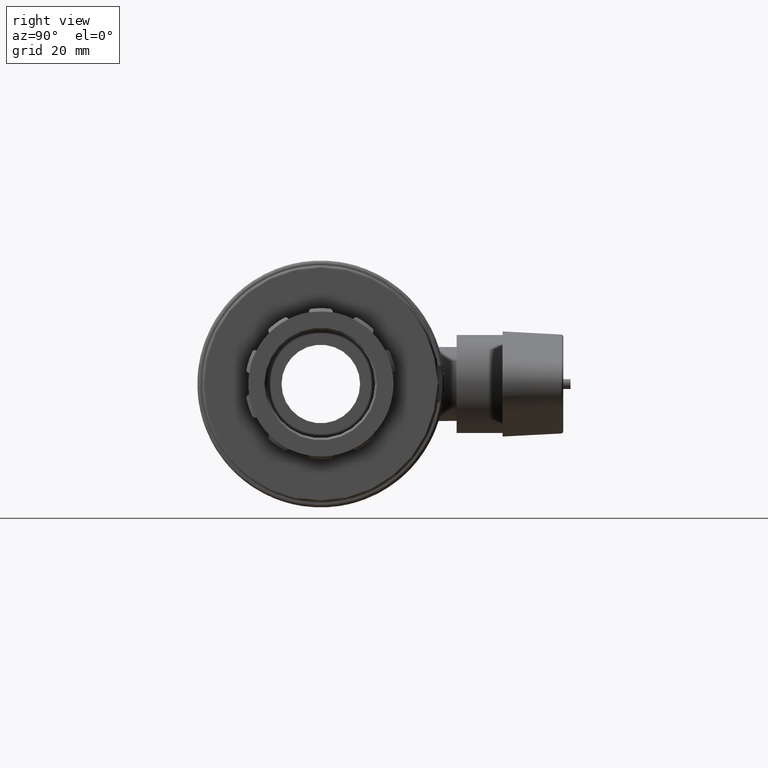
[diagram: clean part render]
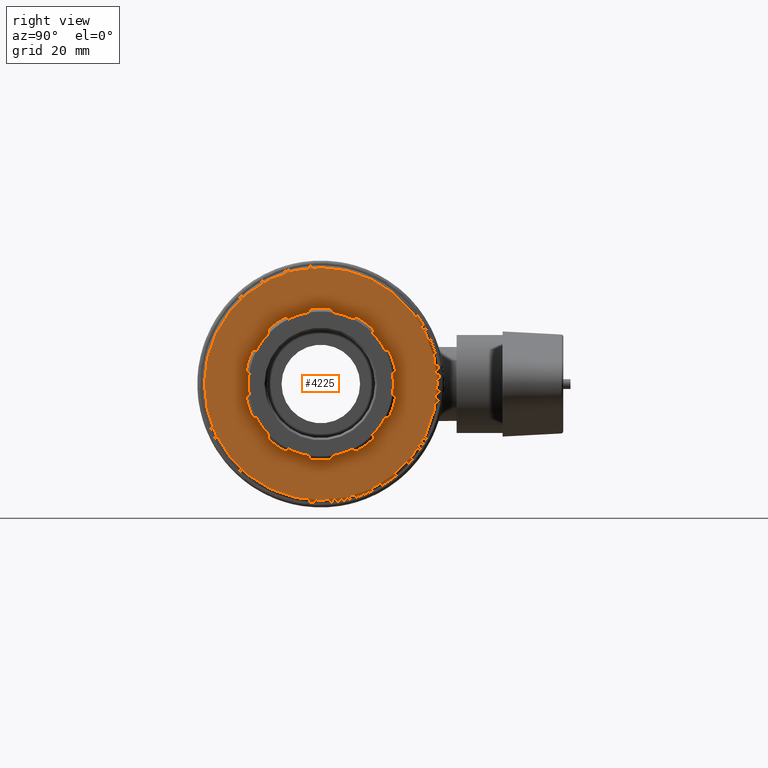
[diagram: same view with one face highlighted and labeled with its STEP entity id]
A machine part, right view. The second image highlights one B-rep face of the part: STEP entity #4225.
In plain terms, the highlighted planar face has unit normal (1, 0, 0).
Its self-contained STEP definition (entity closure, byte-faithful):
#92=FACE_BOUND('',#840,.T.);
#201=PLANE('',#4714);
#573=FACE_OUTER_BOUND('',#839,.T.);
#839=EDGE_LOOP('',(#3801));
#840=EDGE_LOOP('',(#3802,#3803,#3804,#3805,#3806,#3807,#3808,#3809,#3810,
#3811,#3812,#3813,#3814,#3815,#3816,#3817,#3818,#3819,#3820,#3821,#3822,
#3823,#3824,#3825,#3826,#3827,#3828,#3829,#3830,#3831,#3832,#3833,#3834,
#3835,#3836,#3837,#3838,#3839,#3840,#3841));
#1438=CIRCLE('',#4387,0.723510000000002);
#1441=CIRCLE('',#4392,0.723510000000001);
#1444=CIRCLE('',#4397,0.723509999999999);
#1445=CIRCLE('',#4399,0.723510000000001);
#1448=CIRCLE('',#4404,0.723509999999999);
#1449=CIRCLE('',#4406,0.723509999999999);
#1452=CIRCLE('',#4411,0.723510000000001);
#1453=CIRCLE('',#4413,0.723509999999999);
#1456=CIRCLE('',#4418,0.723509999999999);
#1457=CIRCLE('',#4420,0.723509999999999);
#1460=CIRCLE('',#4425,0.723510000000005);
#1461=CIRCLE('',#4427,0.723510000000001);
#1464=CIRCLE('',#4432,0.723509999999999);
#1465=CIRCLE('',#4434,0.723510000000001);
#1468=CIRCLE('',#4439,0.723509999999999);
#1469=CIRCLE('',#4441,0.723509999999999);
#1472=CIRCLE('',#4446,0.723510000000001);
#1473=CIRCLE('',#4448,0.723509999999999);
#1474=CIRCLE('',#4450,16.8819);
#1477=CIRCLE('',#4454,16.15839);
#1479=CIRCLE('',#4457,16.15839);
#1481=CIRCLE('',#4460,16.15839);
#1483=CIRCLE('',#4463,16.15839);
#1485=CIRCLE('',#4466,16.15839);
#1487=CIRCLE('',#4469,16.15839);
#1489=CIRCLE('',#4472,16.15839);
#1491=CIRCLE('',#4475,16.15839);
#1493=CIRCLE('',#4478,16.15839);
#1495=CIRCLE('',#4482,16.8819);
#1496=CIRCLE('',#4484,16.8819);
#1497=CIRCLE('',#4486,16.8819);
#1498=CIRCLE('',#4488,16.8819);
#1499=CIRCLE('',#4490,16.8819);
#1500=CIRCLE('',#4492,16.8819);
#1501=CIRCLE('',#4494,16.8819);
#1502=CIRCLE('',#4496,16.8819);
#1503=CIRCLE('',#4498,16.8819);
#1531=CIRCLE('',#4552,0.723509999999999);
#1532=CIRCLE('',#4554,0.723509999999999);
#1534=CIRCLE('',#4557,16.15839);
#1611=CIRCLE('',#4712,25.91766);
#1762=VERTEX_POINT('',#7062);
#1763=VERTEX_POINT('',#7064);
#1766=VERTEX_POINT('',#7085);
#1767=VERTEX_POINT('',#7086);
#1772=VERTEX_POINT('',#7122);
#1773=VERTEX_POINT('',#7124);
#1774=VERTEX_POINT('',#7128);
#1775=VERTEX_POINT('',#7129);
#1780=VERTEX_POINT('',#7165);
#1781=VERTEX_POINT('',#7167);
#1782=VERTEX_POINT('',#7171);
#1783=VERTEX_POINT('',#7172);
#1788=VERTEX_POINT('',#7208);
#1789=VERTEX_POINT('',#7210);
#1790=VERTEX_POINT('',#7214);
#1791=VERTEX_POINT('',#7215);
#1796=VERTEX_POINT('',#7251);
#1797=VERTEX_POINT('',#7253);
#1798=VERTEX_POINT('',#7257);
#1799=VERTEX_POINT('',#7258);
#1804=VERTEX_POINT('',#7294);
#1805=VERTEX_POINT('',#7296);
#1806=VERTEX_POINT('',#7300);
#1807=VERTEX_POINT('',#7301);
#1812=VERTEX_POINT('',#7337);
#1813=VERTEX_POINT('',#7339);
#1814=VERTEX_POINT('',#7343);
#1815=VERTEX_POINT('',#7344);
#1820=VERTEX_POINT('',#7380);
#1821=VERTEX_POINT('',#7382);
#1822=VERTEX_POINT('',#7386);
#1823=VERTEX_POINT('',#7387);
#1828=VERTEX_POINT('',#7423);
#1829=VERTEX_POINT('',#7425);
#1830=VERTEX_POINT('',#7429);
#1831=VERTEX_POINT('',#7430);
#1834=VERTEX_POINT('',#7449);
#1837=VERTEX_POINT('',#7511);
#1873=VERTEX_POINT('',#7632);
#1874=VERTEX_POINT('',#7636);
#2024=VERTEX_POINT('',#8555);
#2247=EDGE_CURVE('',#1763,#1762,#1438,.T.);
#2252=EDGE_CURVE('',#1766,#1767,#1441,.F.);
#2260=EDGE_CURVE('',#1773,#1772,#1444,.T.);
#2262=EDGE_CURVE('',#1774,#1775,#1445,.F.);
#2270=EDGE_CURVE('',#1781,#1780,#1448,.T.);
#2272=EDGE_CURVE('',#1782,#1783,#1449,.F.);
#2280=EDGE_CURVE('',#1789,#1788,#1452,.T.);
#2282=EDGE_CURVE('',#1790,#1791,#1453,.F.);
#2290=EDGE_CURVE('',#1797,#1796,#1456,.T.);
#2292=EDGE_CURVE('',#1798,#1799,#1457,.F.);
#2300=EDGE_CURVE('',#1805,#1804,#1460,.T.);
#2302=EDGE_CURVE('',#1806,#1807,#1461,.F.);
#2310=EDGE_CURVE('',#1813,#1812,#1464,.T.);
#2312=EDGE_CURVE('',#1814,#1815,#1465,.F.);
#2320=EDGE_CURVE('',#1821,#1820,#1468,.T.);
#2322=EDGE_CURVE('',#1822,#1823,#1469,.F.);
#2330=EDGE_CURVE('',#1829,#1828,#1472,.T.);
#2332=EDGE_CURVE('',#1830,#1831,#1473,.F.);
#2336=EDGE_CURVE('',#1834,#1831,#1474,.T.);
#2340=EDGE_CURVE('',#1763,#1766,#1477,.T.);
#2342=EDGE_CURVE('',#1773,#1774,#1479,.T.);
#2344=EDGE_CURVE('',#1781,#1782,#1481,.T.);
#2346=EDGE_CURVE('',#1789,#1790,#1483,.T.);
#2348=EDGE_CURVE('',#1797,#1798,#1485,.T.);
#2350=EDGE_CURVE('',#1805,#1806,#1487,.T.);
#2352=EDGE_CURVE('',#1813,#1814,#1489,.T.);
#2354=EDGE_CURVE('',#1821,#1822,#1491,.T.);
#2356=EDGE_CURVE('',#1829,#1830,#1493,.T.);
#2359=EDGE_CURVE('',#1828,#1823,#1495,.T.);
#2360=EDGE_CURVE('',#1820,#1815,#1496,.T.);
#2361=EDGE_CURVE('',#1812,#1807,#1497,.T.);
#2362=EDGE_CURVE('',#1804,#1799,#1498,.T.);
#2363=EDGE_CURVE('',#1796,#1791,#1499,.T.);
#2364=EDGE_CURVE('',#1788,#1783,#1500,.T.);
#2365=EDGE_CURVE('',#1780,#1775,#1501,.T.);
#2367=EDGE_CURVE('',#1762,#1837,#1502,.T.);
#2368=EDGE_CURVE('',#1772,#1767,#1503,.T.);
#2424=EDGE_CURVE('',#1873,#1834,#1531,.T.);
#2426=EDGE_CURVE('',#1874,#1837,#1532,.F.);
#2429=EDGE_CURVE('',#1873,#1874,#1534,.T.);
#2651=EDGE_CURVE('',#2024,#2024,#1611,.T.);
#3801=ORIENTED_EDGE('',*,*,#2651,.F.);
#3802=ORIENTED_EDGE('',*,*,#2336,.T.);
#3803=ORIENTED_EDGE('',*,*,#2332,.F.);
#3804=ORIENTED_EDGE('',*,*,#2356,.F.);
#3805=ORIENTED_EDGE('',*,*,#2330,.T.);
#3806=ORIENTED_EDGE('',*,*,#2359,.T.);
#3807=ORIENTED_EDGE('',*,*,#2322,.F.);
#3808=ORIENTED_EDGE('',*,*,#2354,.F.);
#3809=ORIENTED_EDGE('',*,*,#2320,.T.);
#3810=ORIENTED_EDGE('',*,*,#2360,.T.);
#3811=ORIENTED_EDGE('',*,*,#2312,.F.);
#3812=ORIENTED_EDGE('',*,*,#2352,.F.);
#3813=ORIENTED_EDGE('',*,*,#2310,.T.);
#3814=ORIENTED_EDGE('',*,*,#2361,.T.);
#3815=ORIENTED_EDGE('',*,*,#2302,.F.);
#3816=ORIENTED_EDGE('',*,*,#2350,.F.);
#3817=ORIENTED_EDGE('',*,*,#2300,.T.);
#3818=ORIENTED_EDGE('',*,*,#2362,.T.);
#3819=ORIENTED_EDGE('',*,*,#2292,.F.);
#3820=ORIENTED_EDGE('',*,*,#2348,.F.);
#3821=ORIENTED_EDGE('',*,*,#2290,.T.);
#3822=ORIENTED_EDGE('',*,*,#2363,.T.);
#3823=ORIENTED_EDGE('',*,*,#2282,.F.);
#3824=ORIENTED_EDGE('',*,*,#2346,.F.);
#3825=ORIENTED_EDGE('',*,*,#2280,.T.);
#3826=ORIENTED_EDGE('',*,*,#2364,.T.);
#3827=ORIENTED_EDGE('',*,*,#2272,.F.);
#3828=ORIENTED_EDGE('',*,*,#2344,.F.);
#3829=ORIENTED_EDGE('',*,*,#2270,.T.);
#3830=ORIENTED_EDGE('',*,*,#2365,.T.);
#3831=ORIENTED_EDGE('',*,*,#2262,.F.);
#3832=ORIENTED_EDGE('',*,*,#2342,.F.);
#3833=ORIENTED_EDGE('',*,*,#2260,.T.);
#3834=ORIENTED_EDGE('',*,*,#2368,.T.);
#3835=ORIENTED_EDGE('',*,*,#2252,.F.);
#3836=ORIENTED_EDGE('',*,*,#2340,.F.);
#3837=ORIENTED_EDGE('',*,*,#2247,.T.);
#3838=ORIENTED_EDGE('',*,*,#2367,.T.);
#3839=ORIENTED_EDGE('',*,*,#2426,.F.);
#3840=ORIENTED_EDGE('',*,*,#2429,.F.);
#3841=ORIENTED_EDGE('',*,*,#2424,.T.);
#4225=ADVANCED_FACE('',(#573,#92),#201,.T.);
#4387=AXIS2_PLACEMENT_3D('',#7065,#5113,#5114);
#4392=AXIS2_PLACEMENT_3D('',#7087,#5124,#5125);
#4397=AXIS2_PLACEMENT_3D('',#7125,#5137,#5138);
#4399=AXIS2_PLACEMENT_3D('',#7130,#5142,#5143);
#4404=AXIS2_PLACEMENT_3D('',#7168,#5155,#5156);
#4406=AXIS2_PLACEMENT_3D('',#7173,#5160,#5161);
#4411=AXIS2_PLACEMENT_3D('',#7211,#5173,#5174);
#4413=AXIS2_PLACEMENT_3D('',#7216,#5178,#5179);
#4418=AXIS2_PLACEMENT_3D('',#7254,#5191,#5192);
#4420=AXIS2_PLACEMENT_3D('',#7259,#5196,#5197);
#4425=AXIS2_PLACEMENT_3D('',#7297,#5209,#5210);
#4427=AXIS2_PLACEMENT_3D('',#7302,#5214,#5215);
#4432=AXIS2_PLACEMENT_3D('',#7340,#5227,#5228);
#4434=AXIS2_PLACEMENT_3D('',#7345,#5232,#5233);
#4439=AXIS2_PLACEMENT_3D('',#7383,#5245,#5246);
#4441=AXIS2_PLACEMENT_3D('',#7388,#5250,#5251);
#4446=AXIS2_PLACEMENT_3D('',#7426,#5263,#5264);
#4448=AXIS2_PLACEMENT_3D('',#7431,#5268,#5269);
#4450=AXIS2_PLACEMENT_3D('',#7450,#5274,#5275);
#4454=AXIS2_PLACEMENT_3D('',#7456,#5283,#5284);
#4457=AXIS2_PLACEMENT_3D('',#7459,#5289,#5290);
#4460=AXIS2_PLACEMENT_3D('',#7462,#5295,#5296);
#4463=AXIS2_PLACEMENT_3D('',#7465,#5301,#5302);
#4466=AXIS2_PLACEMENT_3D('',#7468,#5307,#5308);
#4469=AXIS2_PLACEMENT_3D('',#7471,#5313,#5314);
#4472=AXIS2_PLACEMENT_3D('',#7474,#5319,#5320);
#4475=AXIS2_PLACEMENT_3D('',#7477,#5325,#5326);
#4478=AXIS2_PLACEMENT_3D('',#7480,#5331,#5332);
#4482=AXIS2_PLACEMENT_3D('',#7497,#5339,#5340);
#4484=AXIS2_PLACEMENT_3D('',#7499,#5343,#5344);
#4486=AXIS2_PLACEMENT_3D('',#7501,#5347,#5348);
#4488=AXIS2_PLACEMENT_3D('',#7503,#5351,#5352);
#4490=AXIS2_PLACEMENT_3D('',#7505,#5355,#5356);
#4492=AXIS2_PLACEMENT_3D('',#7507,#5359,#5360);
#4494=AXIS2_PLACEMENT_3D('',#7509,#5363,#5364);
#4496=AXIS2_PLACEMENT_3D('',#7513,#5368,#5369);
#4498=AXIS2_PLACEMENT_3D('',#7515,#5372,#5373);
#4552=AXIS2_PLACEMENT_3D('',#7633,#5508,#5509);
#4554=AXIS2_PLACEMENT_3D('',#7637,#5513,#5514);
#4557=AXIS2_PLACEMENT_3D('',#7641,#5520,#5521);
#4712=AXIS2_PLACEMENT_3D('',#8556,#5926,#5927);
#4714=AXIS2_PLACEMENT_3D('',#8559,#5930,#5931);
#5113=DIRECTION('center_axis',(-1.,0.,0.));
#5114=DIRECTION('ref_axis',(0.,0.907406534943977,0.420253947442453));
#5124=DIRECTION('center_axis',(-1.,0.,0.));
#5125=DIRECTION('ref_axis',(0.,0.680089295318479,0.733129286274402));
#5137=DIRECTION('center_axis',(-1.,0.,0.));
#5138=DIRECTION('ref_axis',(0.,0.487088235052192,0.873352764507985));
#5142=DIRECTION('center_axis',(-1.,0.,0.));
#5143=DIRECTION('ref_axis',(0.,0.119281215109332,0.99286050970015));
#5155=DIRECTION('center_axis',(-1.,0.,0.));
#5156=DIRECTION('ref_axis',(0.,-0.119281215109332,0.99286050970015));
#5160=DIRECTION('center_axis',(-1.,0.,0.));
#5161=DIRECTION('ref_axis',(0.,-0.487088235052192,0.873352764507985));
#5173=DIRECTION('center_axis',(-1.,0.,0.));
#5174=DIRECTION('ref_axis',(0.,-0.680089295318479,0.733129286274402));
#5178=DIRECTION('center_axis',(-1.,0.,0.));
#5179=DIRECTION('ref_axis',(0.,-0.907406534943978,0.420253947442452));
#5191=DIRECTION('center_axis',(-1.,0.,0.));
#5192=DIRECTION('ref_axis',(0.,-0.981126380100932,0.193367593639784));
#5196=DIRECTION('center_axis',(-1.,0.,0.));
#5197=DIRECTION('ref_axis',(0.,-0.981126380100932,-0.193367593639785));
#5209=DIRECTION('center_axis',(-1.,0.,0.));
#5210=DIRECTION('ref_axis',(0.,-0.907406534943977,-0.420253947442453));
#5214=DIRECTION('center_axis',(-1.,0.,0.));
#5215=DIRECTION('ref_axis',(0.,-0.680089295318479,-0.733129286274402));
#5227=DIRECTION('center_axis',(-1.,0.,0.));
#5228=DIRECTION('ref_axis',(0.,-0.487088235052192,-0.873352764507985));
#5232=DIRECTION('center_axis',(-1.,0.,0.));
#5233=DIRECTION('ref_axis',(0.,-0.119281215109332,-0.99286050970015));
#5245=DIRECTION('center_axis',(-1.,0.,0.));
#5246=DIRECTION('ref_axis',(0.,0.119281215109332,-0.99286050970015));
#5250=DIRECTION('center_axis',(-1.,0.,0.));
#5251=DIRECTION('ref_axis',(0.,0.487088235052192,-0.873352764507985));
#5263=DIRECTION('center_axis',(-1.,0.,0.));
#5264=DIRECTION('ref_axis',(0.,0.680089295318479,-0.733129286274402));
#5268=DIRECTION('center_axis',(-1.,0.,0.));
#5269=DIRECTION('ref_axis',(0.,0.907406534943978,-0.420253947442452));
#5274=DIRECTION('center_axis',(-1.,0.,0.));
#5275=DIRECTION('ref_axis',(0.,0.,1.));
#5283=DIRECTION('center_axis',(1.,0.,0.));
#5284=DIRECTION('ref_axis',(0.,-0.587785252292473,0.809016994374947));
#5289=DIRECTION('center_axis',(1.,0.,0.));
#5290=DIRECTION('ref_axis',(0.,-0.951056516295154,0.309016994374947));
#5295=DIRECTION('center_axis',(1.,0.,0.));
#5296=DIRECTION('ref_axis',(0.,-0.951056516295154,-0.309016994374947));
#5301=DIRECTION('center_axis',(1.,0.,0.));
#5302=DIRECTION('ref_axis',(0.,-0.587785252292473,-0.809016994374948));
#5307=DIRECTION('center_axis',(1.,0.,0.));
#5308=DIRECTION('ref_axis',(0.,2.06126295619518E-16,-1.));
#5313=DIRECTION('center_axis',(1.,0.,0.));
#5314=DIRECTION('ref_axis',(0.,0.587785252292473,-0.809016994374947));
#5319=DIRECTION('center_axis',(1.,0.,0.));
#5320=DIRECTION('ref_axis',(0.,0.951056516295154,-0.309016994374947));
#5325=DIRECTION('center_axis',(1.,0.,0.));
#5326=DIRECTION('ref_axis',(0.,0.951056516295153,0.309016994374947));
#5331=DIRECTION('center_axis',(1.,0.,0.));
#5332=DIRECTION('ref_axis',(0.,0.587785252292473,0.809016994374947));
#5339=DIRECTION('center_axis',(-1.,0.,0.));
#5340=DIRECTION('ref_axis',(0.,0.,1.));
#5343=DIRECTION('center_axis',(-1.,0.,0.));
#5344=DIRECTION('ref_axis',(0.,0.,1.));
#5347=DIRECTION('center_axis',(-1.,0.,0.));
#5348=DIRECTION('ref_axis',(0.,0.,1.));
#5351=DIRECTION('center_axis',(-1.,0.,0.));
#5352=DIRECTION('ref_axis',(0.,0.,1.));
#5355=DIRECTION('center_axis',(-1.,0.,0.));
#5356=DIRECTION('ref_axis',(0.,0.,1.));
#5359=DIRECTION('center_axis',(-1.,0.,0.));
#5360=DIRECTION('ref_axis',(0.,0.,1.));
#5363=DIRECTION('center_axis',(-1.,0.,0.));
#5364=DIRECTION('ref_axis',(0.,0.,1.));
#5368=DIRECTION('center_axis',(-1.,0.,0.));
#5369=DIRECTION('ref_axis',(0.,0.,1.));
#5372=DIRECTION('center_axis',(-1.,0.,0.));
#5373=DIRECTION('ref_axis',(0.,0.,1.));
#5508=DIRECTION('center_axis',(-1.,0.,0.));
#5509=DIRECTION('ref_axis',(0.,0.981126380100932,-0.193367593639784));
#5513=DIRECTION('center_axis',(-1.,0.,0.));
#5514=DIRECTION('ref_axis',(0.,0.981126380100932,0.193367593639784));
#5520=DIRECTION('center_axis',(1.,0.,0.));
#5521=DIRECTION('ref_axis',(0.,0.,1.));
#5926=DIRECTION('center_axis',(-1.,0.,0.));
#5927=DIRECTION('ref_axis',(0.,-1.,-1.83697019872103E-16));
#5930=DIRECTION('center_axis',(1.,0.,0.));
#5931=DIRECTION('ref_axis',(0.,0.,-1.));
#7062=CARTESIAN_POINT('',(30.1333333333333,15.3187463822707,7.09468511532875));
#7064=CARTESIAN_POINT('',(30.1333333333333,14.3435487996489,7.44017306412895));
#7065=CARTESIAN_POINT('Origin',(30.1333333333333,14.6622286801734,6.79062718181466));
#7085=CARTESIAN_POINT('',(30.1333333333333,11.5084254137414,11.3423856347971));
#7086=CARTESIAN_POINT('',(30.1333333333333,11.481199474637,12.3766152979558));
#7087=CARTESIAN_POINT('Origin',(30.1333333333333,10.9891480685812,11.8461889280434));
#7122=CARTESIAN_POINT('',(30.1333333333333,8.2229748753276,14.7438540351474));
#7124=CARTESIAN_POINT('',(30.1333333333333,7.23095073696366,14.4501528999421));
#7125=CARTESIAN_POINT('Origin',(30.1333333333333,7.87056166638499,14.1119745764982));
#7128=CARTESIAN_POINT('',(30.1333333333333,2.64362473626561,15.9406654706102));
#7129=CARTESIAN_POINT('',(30.1333333333333,2.01369354535423,16.761371838707));
#7130=CARTESIAN_POINT('Origin',(30.1333333333333,1.92739239341048,16.0430273313338));
#7165=CARTESIAN_POINT('',(30.1333333333333,-2.01369354535424,16.761371838707));
#7167=CARTESIAN_POINT('',(30.1333333333333,-2.64362473626562,15.9406654706102));
#7168=CARTESIAN_POINT('Origin',(30.1333333333333,-1.92739239341048,16.0430273313338));
#7171=CARTESIAN_POINT('',(30.1333333333333,-7.23095073696367,14.4501528999421));
#7172=CARTESIAN_POINT('',(30.1333333333333,-8.22297487532761,14.7438540351473));
#7173=CARTESIAN_POINT('Origin',(30.1333333333333,-7.870561666385,14.1119745764982));
#7208=CARTESIAN_POINT('',(30.1333333333333,-11.481199474637,12.3766152979558));
#7210=CARTESIAN_POINT('',(30.1333333333333,-11.5084254137414,11.3423856347971));
#7211=CARTESIAN_POINT('Origin',(30.1333333333333,-10.9891480685812,11.8461889280434));
#7214=CARTESIAN_POINT('',(30.1333333333333,-14.3435487996489,7.44017306412894));
#7215=CARTESIAN_POINT('',(30.1333333333333,-15.3187463822707,7.09468511532874));
#7216=CARTESIAN_POINT('Origin',(30.1333333333333,-14.6622286801734,6.79062718181465));
#7251=CARTESIAN_POINT('',(30.1333333333333,-16.5632774362259,3.26441237906747));
#7253=CARTESIAN_POINT('',(30.1333333333333,-15.9773987401611,2.41169999999999));
#7254=CARTESIAN_POINT('Origin',(30.1333333333333,-15.8534226889591,3.12450899139315));
#7257=CARTESIAN_POINT('',(30.1333333333333,-15.9773987401611,-2.41170000000001));
#7258=CARTESIAN_POINT('',(30.1333333333333,-16.5632774362259,-3.26441237906748));
#7259=CARTESIAN_POINT('Origin',(30.1333333333333,-15.8534226889591,-3.12450899139316));
#7294=CARTESIAN_POINT('',(30.1333333333333,-15.3187463822707,-7.09468511532875));
#7296=CARTESIAN_POINT('',(30.1333333333333,-14.3435487996489,-7.44017306412895));
#7297=CARTESIAN_POINT('Origin',(30.1333333333333,-14.6622286801734,-6.79062718181466));
#7300=CARTESIAN_POINT('',(30.1333333333333,-11.5084254137414,-11.3423856347971));
#7301=CARTESIAN_POINT('',(30.1333333333333,-11.481199474637,-12.3766152979558));
#7302=CARTESIAN_POINT('Origin',(30.1333333333333,-10.9891480685812,-11.8461889280434));
#7337=CARTESIAN_POINT('',(30.1333333333333,-8.2229748753276,-14.7438540351474));
#7339=CARTESIAN_POINT('',(30.1333333333333,-7.23095073696366,-14.4501528999421));
#7340=CARTESIAN_POINT('Origin',(30.1333333333333,-7.87056166638499,-14.1119745764982));
#7343=CARTESIAN_POINT('',(30.1333333333333,-2.64362473626561,-15.9406654706102));
#7344=CARTESIAN_POINT('',(30.1333333333333,-2.01369354535423,-16.761371838707));
#7345=CARTESIAN_POINT('Origin',(30.1333333333333,-1.92739239341048,-16.0430273313338));
#7380=CARTESIAN_POINT('',(30.1333333333333,2.01369354535424,-16.761371838707));
#7382=CARTESIAN_POINT('',(30.1333333333333,2.64362473626562,-15.9406654706102));
#7383=CARTESIAN_POINT('Origin',(30.1333333333333,1.92739239341048,-16.0430273313338));
#7386=CARTESIAN_POINT('',(30.1333333333333,7.23095073696366,-14.4501528999421));
#7387=CARTESIAN_POINT('',(30.1333333333333,8.22297487532761,-14.7438540351473));
#7388=CARTESIAN_POINT('Origin',(30.1333333333333,7.870561666385,-14.1119745764982));
#7423=CARTESIAN_POINT('',(30.1333333333333,11.481199474637,-12.3766152979558));
#7425=CARTESIAN_POINT('',(30.1333333333333,11.5084254137414,-11.3423856347971));
#7426=CARTESIAN_POINT('Origin',(30.1333333333333,10.9891480685812,-11.8461889280434));
#7429=CARTESIAN_POINT('',(30.1333333333333,14.3435487996489,-7.44017306412894));
#7430=CARTESIAN_POINT('',(30.1333333333333,15.3187463822707,-7.09468511532874));
#7431=CARTESIAN_POINT('Origin',(30.1333333333333,14.6622286801734,-6.79062718181465));
#7449=CARTESIAN_POINT('',(30.1333333333333,16.5632774362259,-3.26441237906747));
#7450=CARTESIAN_POINT('Origin',(30.1333333333333,0.,0.));
#7456=CARTESIAN_POINT('Origin',(30.1333333333333,0.,0.));
#7459=CARTESIAN_POINT('Origin',(30.1333333333333,0.,0.));
#7462=CARTESIAN_POINT('Origin',(30.1333333333333,0.,0.));
#7465=CARTESIAN_POINT('Origin',(30.1333333333333,0.,0.));
#7468=CARTESIAN_POINT('Origin',(30.1333333333333,0.,0.));
#7471=CARTESIAN_POINT('Origin',(30.1333333333333,0.,0.));
#7474=CARTESIAN_POINT('Origin',(30.1333333333333,0.,0.));
#7477=CARTESIAN_POINT('Origin',(30.1333333333333,0.,0.));
#7480=CARTESIAN_POINT('Origin',(30.1333333333333,0.,0.));
#7497=CARTESIAN_POINT('Origin',(30.1333333333333,0.,0.));
#7499=CARTESIAN_POINT('Origin',(30.1333333333333,0.,0.));
#7501=CARTESIAN_POINT('Origin',(30.1333333333333,0.,0.));
#7503=CARTESIAN_POINT('Origin',(30.1333333333333,0.,0.));
#7505=CARTESIAN_POINT('Origin',(30.1333333333333,0.,0.));
#7507=CARTESIAN_POINT('Origin',(30.1333333333333,0.,0.));
#7509=CARTESIAN_POINT('Origin',(30.1333333333333,0.,0.));
#7511=CARTESIAN_POINT('',(30.1333333333333,16.5632774362259,3.26441237906748));
#7513=CARTESIAN_POINT('Origin',(30.1333333333333,0.,0.));
#7515=CARTESIAN_POINT('Origin',(30.1333333333333,0.,0.));
#7632=CARTESIAN_POINT('',(30.1333333333333,15.9773987401611,-2.4117));
#7633=CARTESIAN_POINT('Origin',(30.1333333333333,15.8534226889591,-3.12450899139315));
#7636=CARTESIAN_POINT('',(30.1333333333333,15.9773987401611,2.4117));
#7637=CARTESIAN_POINT('Origin',(30.1333333333333,15.8534226889591,3.12450899139316));
#7641=CARTESIAN_POINT('Origin',(30.1333333333333,0.,0.));
#8555=CARTESIAN_POINT('',(30.1333333333333,25.91766,1.58699896801947E-15));
#8556=CARTESIAN_POINT('Origin',(30.1333333333333,0.,0.));
#8559=CARTESIAN_POINT('Origin',(30.1333333333333,26.4,0.));